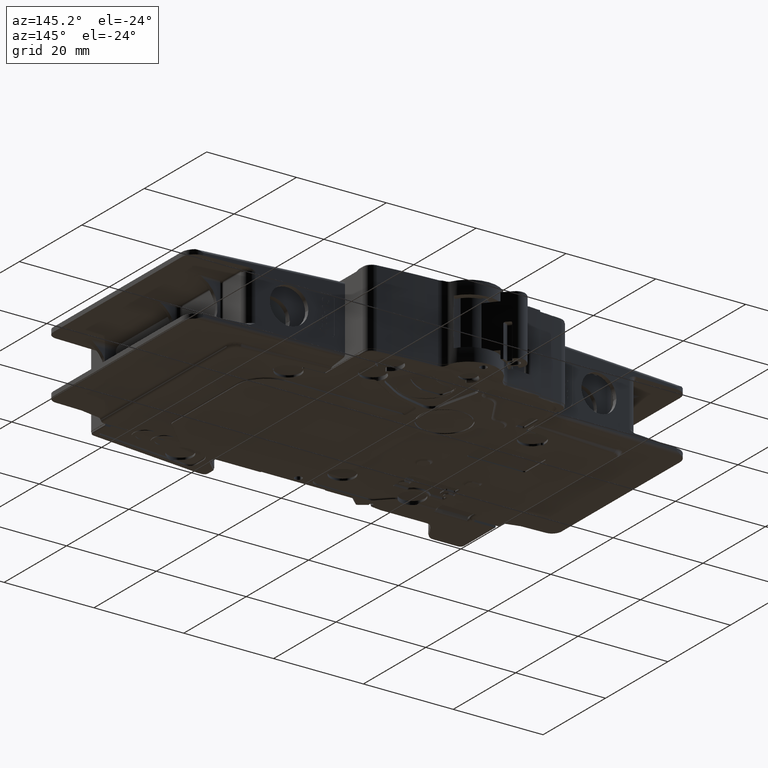
[diagram: clean part render]
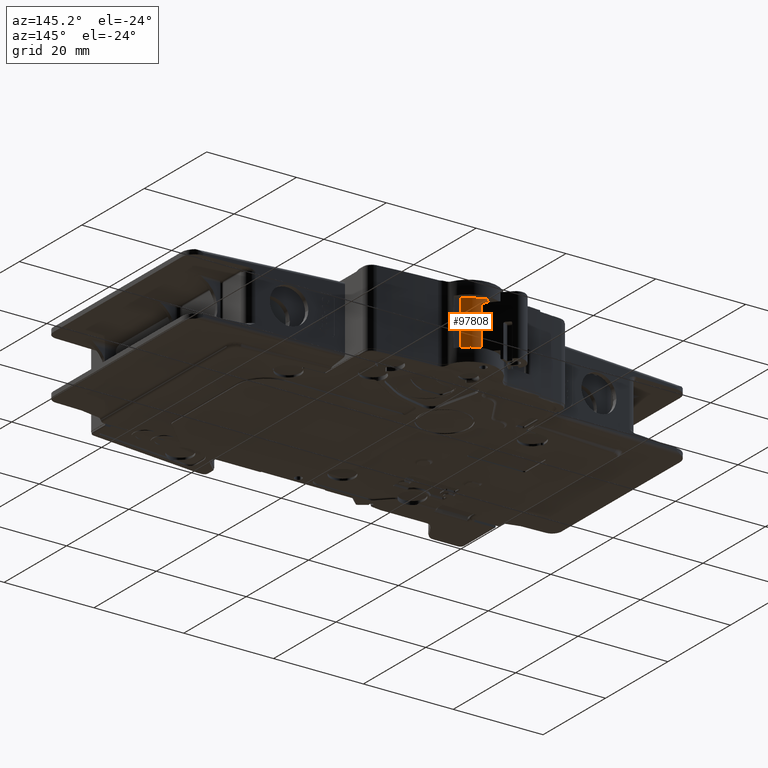
[diagram: same view with one face highlighted and labeled with its STEP entity id]
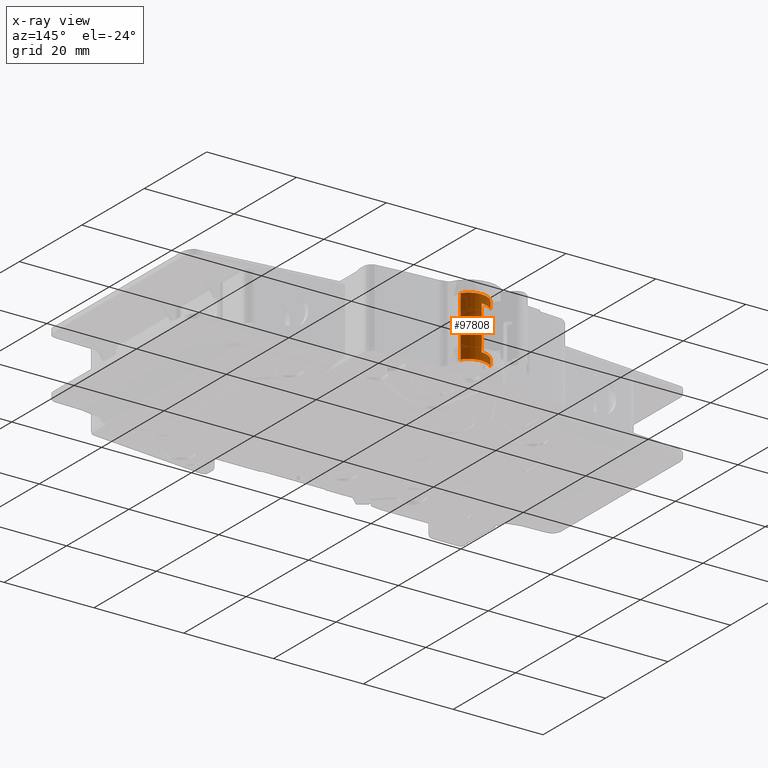
[diagram: x-ray of the same camera — body ghosted, the highlighted face saturated]
A machine part, auxiliary view. The second image highlights one B-rep face of the part: STEP entity #97808.
The next image is the same camera in x-ray: the body ghosted, the highlighted face saturated — about 0% of this face is hidden behind the body in this view.
In plain terms, the highlighted cylindrical surface (edge-blend (fillet) strip) has radius 4.05 mm, axis along (0, 0, 1).
Its self-contained STEP definition (entity closure, byte-faithful):
#26755=DIRECTION('',(0.E0,0.E0,1.E0));
#26756=VECTOR('',#26755,1.33E1);
#26757=CARTESIAN_POINT('',(3.344004003378E0,2.284761962522E0,-6.6E0));
#26758=LINE('',#26757,#26756);
#26799=DIRECTION('',(0.E0,0.E0,1.E0));
#26800=VECTOR('',#26799,1.7E0);
#26801=CARTESIAN_POINT('',(-3.475073570078E0,2.079991269824E0,-6.6E0));
#26802=LINE('',#26801,#26800);
#26815=DIRECTION('',(0.E0,0.E0,1.E0));
#26816=VECTOR('',#26815,1.8E0);
#26817=CARTESIAN_POINT('',(-3.475073570078E0,2.079991269824E0,4.9E0));
#26818=LINE('',#26817,#26816);
#29680=CARTESIAN_POINT('',(0.E0,0.E0,6.7E0));
#29681=DIRECTION('',(0.E0,0.E0,1.E0));
#29682=DIRECTION('',(8.256800008342E-1,5.641387561783E-1,0.E0));
#29683=AXIS2_PLACEMENT_3D('',#29680,#29681,#29682);
#29685=DIRECTION('',(0.E0,0.E0,1.E0));
#29686=VECTOR('',#29685,9.8E0);
#29687=CARTESIAN_POINT('',(-8.354018581781E-2,4.049138308005E0,-4.9E0));
#29688=LINE('',#29687,#29686);
#29689=CARTESIAN_POINT('',(0.E0,0.E0,-6.6E0));
#29690=DIRECTION('',(0.E0,0.E0,1.E0));
#29691=DIRECTION('',(8.256800008342E-1,5.641387561783E-1,0.E0));
#29692=AXIS2_PLACEMENT_3D('',#29689,#29690,#29691);
#29707=CARTESIAN_POINT('',(0.E0,0.E0,4.9E0));
#29708=DIRECTION('',(0.E0,0.E0,-1.E0));
#29709=DIRECTION('',(-8.580428568094E-1,5.135780913145E-1,0.E0));
#29710=AXIS2_PLACEMENT_3D('',#29707,#29708,#29709);
#29724=CARTESIAN_POINT('',(0.E0,0.E0,-4.9E0));
#29725=DIRECTION('',(0.E0,0.E0,1.E0));
#29726=DIRECTION('',(-2.062720637477E-2,9.997872365444E-1,0.E0));
#29727=AXIS2_PLACEMENT_3D('',#29724,#29725,#29726);
#41407=CARTESIAN_POINT('',(-8.354018581781E-2,4.049138308005E0,-4.9E0));
#41409=VERTEX_POINT('',#41407);
#41429=CARTESIAN_POINT('',(-8.354018581781E-2,4.049138308005E0,4.9E0));
#41431=VERTEX_POINT('',#41429);
#41554=CARTESIAN_POINT('',(-3.475073570078E0,2.079991269824E0,6.7E0));
#41556=VERTEX_POINT('',#41554);
#41559=CARTESIAN_POINT('',(3.344004003378E0,2.284761962522E0,6.7E0));
#41561=VERTEX_POINT('',#41559);
#41562=CARTESIAN_POINT('',(3.344004003378E0,2.284761962522E0,-6.6E0));
#41563=VERTEX_POINT('',#41562);
#41564=CARTESIAN_POINT('',(-3.475073570078E0,2.079991269824E0,-6.6E0));
#41565=CARTESIAN_POINT('',(-3.475073570078E0,2.079991269824E0,-4.9E0));
#41566=VERTEX_POINT('',#41564);
#41567=VERTEX_POINT('',#41565);
#41568=CARTESIAN_POINT('',(-3.475073570078E0,2.079991269824E0,4.9E0));
#41569=VERTEX_POINT('',#41568);
#97789=CARTESIAN_POINT('',(0.E0,0.E0,-6.7E0));
#97790=DIRECTION('',(0.E0,0.E0,1.E0));
#97791=DIRECTION('',(7.738402097265E-1,6.333808726275E-1,0.E0));
#97792=AXIS2_PLACEMENT_3D('',#97789,#97790,#97791);
#97793=CYLINDRICAL_SURFACE('',#97792,4.05E0);
#97794=ORIENTED_EDGE('',*,*,#91395,.T.);
#97795=ORIENTED_EDGE('',*,*,#97775,.T.);
#97796=ORIENTED_EDGE('',*,*,#91419,.F.);
#97798=ORIENTED_EDGE('',*,*,#97797,.T.);
#97800=ORIENTED_EDGE('',*,*,#97799,.F.);
#97802=ORIENTED_EDGE('',*,*,#97801,.T.);
#97803=ORIENTED_EDGE('',*,*,#91411,.F.);
#97805=ORIENTED_EDGE('',*,*,#97804,.F.);
#97806=EDGE_LOOP('',(#97794,#97795,#97796,#97798,#97800,#97802,#97803,#97805));
#97807=FACE_OUTER_BOUND('',#97806,.F.);
#29684=CIRCLE('',#29683,4.05E0);
#29693=CIRCLE('',#29692,4.05E0);
#29711=CIRCLE('',#29710,4.05E0);
#29728=CIRCLE('',#29727,4.05E0);
#91395=EDGE_CURVE('',#41563,#41561,#26758,.T.);
#91411=EDGE_CURVE('',#41566,#41567,#26802,.T.);
#91419=EDGE_CURVE('',#41569,#41556,#26818,.T.);
#97775=EDGE_CURVE('',#41561,#41556,#29684,.T.);
#97797=EDGE_CURVE('',#41569,#41431,#29711,.T.);
#97799=EDGE_CURVE('',#41409,#41431,#29688,.T.);
#97801=EDGE_CURVE('',#41409,#41567,#29728,.T.);
#97804=EDGE_CURVE('',#41563,#41566,#29693,.T.);
#97808=ADVANCED_FACE('',(#97807),#97793,.T.);